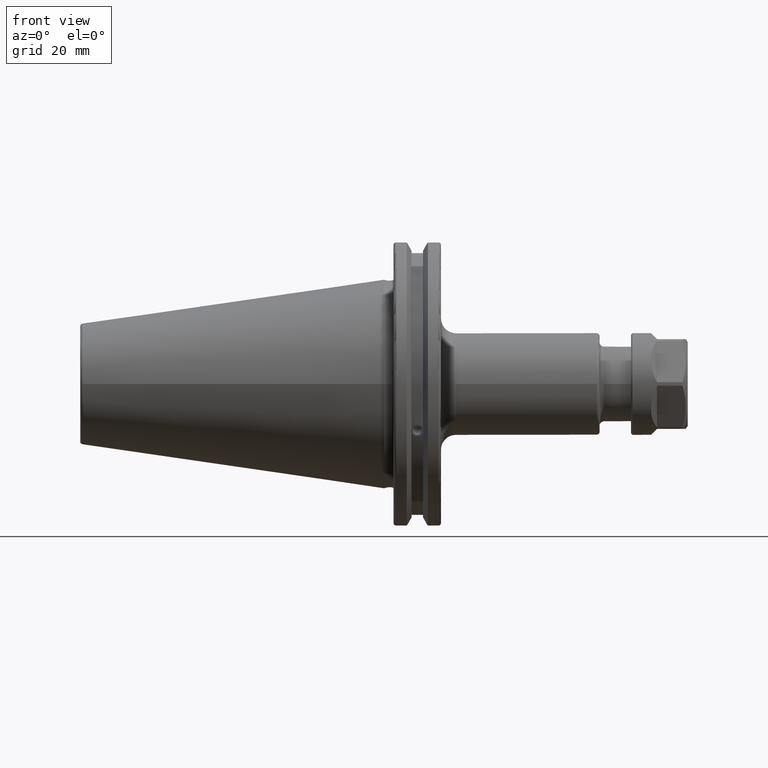
[diagram: clean part render]
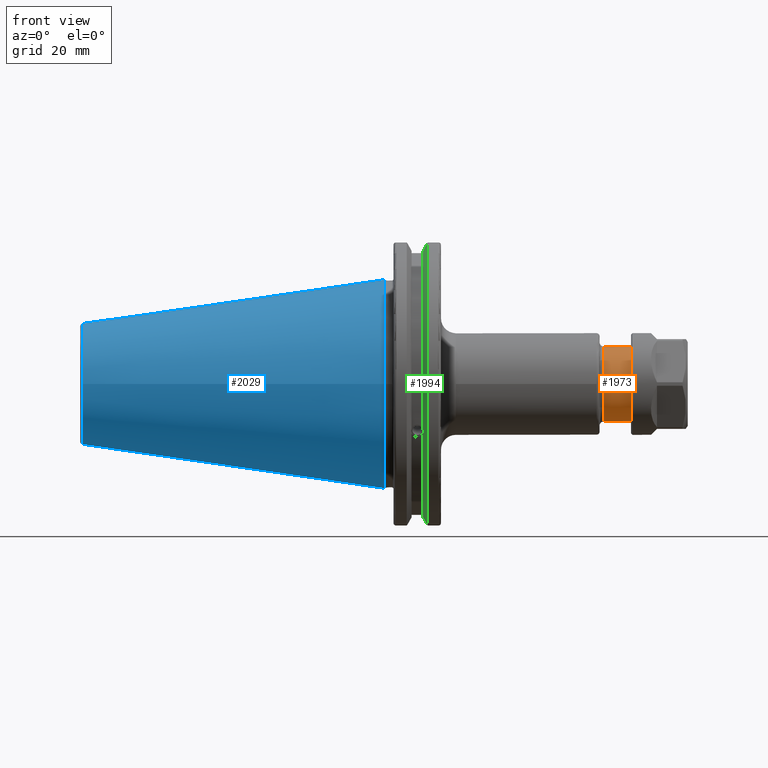
[diagram: same view with three faces highlighted in distinct colors, each labeled with its STEP entity id]
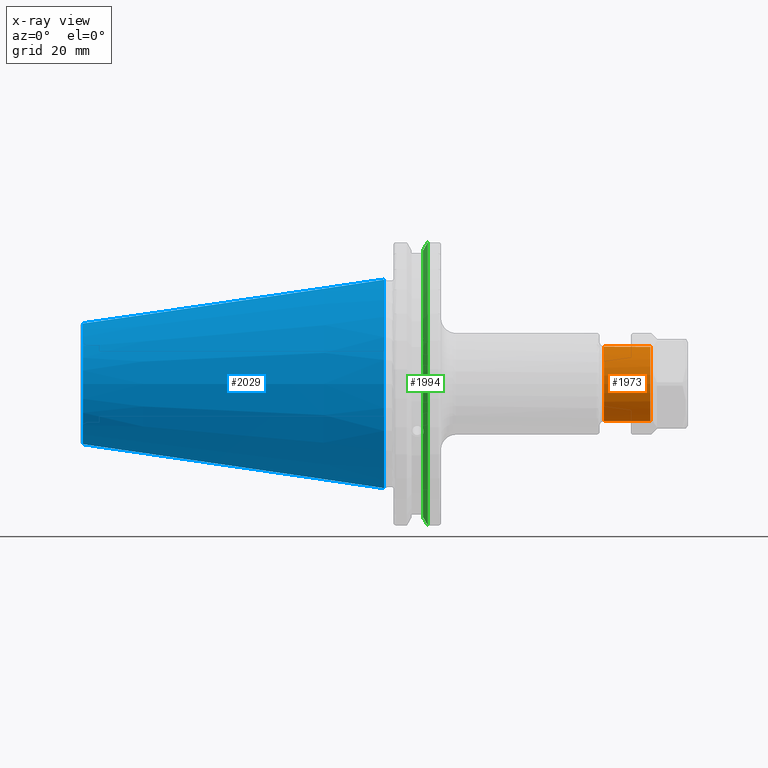
[diagram: x-ray of the same camera — body ghosted, the three highlighted faces saturated]
A machine part, front view with three faces highlighted in distinct colors.
The next image is the same camera in x-ray (body ghosted, the three faces saturated) — at least one of them is partly hidden behind the body in this view.
Their STEP definitions:

[orange] entity #1973 — the highlighted cylindrical surface (bore or boss wall) has radius 12.5 mm, axis along (1, 0, 0).
#142=CYLINDRICAL_SURFACE('',#2169,12.5);
#260=FACE_OUTER_BOUND('',#378,.T.);
#378=EDGE_LOOP('',(#1369,#1370,#1371,#1372,#1373,#1374));
#520=LINE('',#3010,#640);
#640=VECTOR('',#2418,12.5);
#760=CIRCLE('',#2165,12.5);
#761=CIRCLE('',#2166,12.5);
#763=CIRCLE('',#2170,12.5);
#764=CIRCLE('',#2171,12.5);
#867=VERTEX_POINT('',#3000);
#868=VERTEX_POINT('',#3002);
#870=VERTEX_POINT('',#3009);
#871=VERTEX_POINT('',#3011);
#1067=EDGE_CURVE('',#867,#868,#760,.T.);
#1068=EDGE_CURVE('',#868,#867,#761,.T.);
#1070=EDGE_CURVE('',#868,#870,#520,.T.);
#1071=EDGE_CURVE('',#871,#870,#763,.T.);
#1072=EDGE_CURVE('',#870,#871,#764,.T.);
#1369=ORIENTED_EDGE('',*,*,#1067,.F.);
#1370=ORIENTED_EDGE('',*,*,#1068,.F.);
#1371=ORIENTED_EDGE('',*,*,#1070,.T.);
#1372=ORIENTED_EDGE('',*,*,#1071,.F.);
#1373=ORIENTED_EDGE('',*,*,#1072,.F.);
#1374=ORIENTED_EDGE('',*,*,#1070,.F.);
#1973=ADVANCED_FACE('',(#260),#142,.T.);
#2165=AXIS2_PLACEMENT_3D('',#3003,#2408,#2409);
#2166=AXIS2_PLACEMENT_3D('',#3004,#2410,#2411);
#2169=AXIS2_PLACEMENT_3D('',#3008,#2416,#2417);
#2170=AXIS2_PLACEMENT_3D('',#3012,#2419,#2420);
#2171=AXIS2_PLACEMENT_3D('',#3013,#2421,#2422);
#2408=DIRECTION('center_axis',(1.,0.,0.));
#2409=DIRECTION('ref_axis',(0.,-1.,0.));
#2410=DIRECTION('center_axis',(1.,0.,0.));
#2411=DIRECTION('ref_axis',(0.,-1.,0.));
#2416=DIRECTION('center_axis',(1.,0.,0.));
#2417=DIRECTION('ref_axis',(0.,1.,0.));
#2418=DIRECTION('',(-1.,0.,0.));
#2419=DIRECTION('center_axis',(-1.,0.,0.));
#2420=DIRECTION('ref_axis',(0.,-1.,1.83697019872103E-16));
#2421=DIRECTION('center_axis',(-1.,0.,0.));
#2422=DIRECTION('ref_axis',(0.,-1.,1.83697019872103E-16));
#3000=CARTESIAN_POINT('',(89.1,12.5,1.53080849893419E-15));
#3002=CARTESIAN_POINT('',(89.1,-12.5,-1.53080849893419E-15));
#3003=CARTESIAN_POINT('Origin',(89.1,0.,0.));
#3004=CARTESIAN_POINT('Origin',(89.1,0.,0.));
#3008=CARTESIAN_POINT('Origin',(81.1,0.,0.));
#3009=CARTESIAN_POINT('',(73.6,-12.5,-1.53080849893419E-15));
#3010=CARTESIAN_POINT('',(81.1,-12.5,-1.53080849893419E-15));
#3011=CARTESIAN_POINT('',(73.6,-1.53080849893419E-15,12.5));
#3012=CARTESIAN_POINT('Origin',(73.6,0.,0.));
#3013=CARTESIAN_POINT('Origin',(73.6,0.,0.));

[blue] entity #2029 — the highlighted conical surface has half-angle 8.297 deg.
#316=FACE_OUTER_BOUND('',#451,.T.);
#451=EDGE_LOOP('',(#1687,#1688,#1689,#1690,#1691));
#594=LINE('',#3868,#714);
#714=VECTOR('',#2738,27.5166666666666);
#822=CIRCLE('',#2285,20.233121911427);
#823=CIRCLE('',#2286,20.233121911427);
#827=CIRCLE('',#2292,34.925);
#1007=VERTEX_POINT('',#3855);
#1008=VERTEX_POINT('',#3856);
#1011=VERTEX_POINT('',#3866);
#1257=EDGE_CURVE('',#1007,#1008,#822,.T.);
#1258=EDGE_CURVE('',#1008,#1007,#823,.T.);
#1262=EDGE_CURVE('',#1011,#1011,#827,.T.);
#1263=EDGE_CURVE('',#1011,#1008,#594,.T.);
#1687=ORIENTED_EDGE('',*,*,#1262,.F.);
#1688=ORIENTED_EDGE('',*,*,#1263,.T.);
#1689=ORIENTED_EDGE('',*,*,#1257,.F.);
#1690=ORIENTED_EDGE('',*,*,#1258,.F.);
#1691=ORIENTED_EDGE('',*,*,#1263,.F.);
#1962=CONICAL_SURFACE('',#2291,27.5166666666666,0.14481249823894);
#2029=ADVANCED_FACE('',(#316),#1962,.T.);
#2285=AXIS2_PLACEMENT_3D('',#3857,#2722,#2723);
#2286=AXIS2_PLACEMENT_3D('',#3858,#2724,#2725);
#2291=AXIS2_PLACEMENT_3D('',#3865,#2734,#2735);
#2292=AXIS2_PLACEMENT_3D('',#3867,#2736,#2737);
#2722=DIRECTION('center_axis',(-1.,0.,0.));
#2723=DIRECTION('ref_axis',(0.,-1.,3.06161699786838E-17));
#2724=DIRECTION('center_axis',(-1.,0.,0.));
#2725=DIRECTION('ref_axis',(0.,-1.,3.06161699786838E-17));
#2734=DIRECTION('center_axis',(1.,0.,0.));
#2735=DIRECTION('ref_axis',(0.,1.,0.));
#2736=DIRECTION('center_axis',(1.,0.,0.));
#2737=DIRECTION('ref_axis',(0.,0.,-1.));
#2738=DIRECTION('',(-0.989532981063281,0.144306893071729,1.76724974695192E-17));
#3855=CARTESIAN_POINT('',(-100.744306893072,-2.47784279855872E-15,20.233121911427));
#3856=CARTESIAN_POINT('',(-100.744306893072,-20.233121911427,-2.47784279855872E-15));
#3857=CARTESIAN_POINT('Origin',(-100.744306893072,0.,-3.09730349819841E-15));
#3858=CARTESIAN_POINT('Origin',(-100.744306893072,0.,-3.09730349819841E-15));
#3865=CARTESIAN_POINT('Origin',(-50.8,0.,0.));
#3866=CARTESIAN_POINT('',(-8.88178419700125E-15,-34.925,-4.27707894602213E-15));
#3867=CARTESIAN_POINT('Origin',(0.,0.,0.));
#3868=CARTESIAN_POINT('',(-50.8,-27.5166666666666,-3.3698197756538E-15));

[green] entity #1994 — the highlighted conical surface has half-angle 60 deg.
#61=(
BOUNDED_CURVE()
B_SPLINE_CURVE(2,(#3360,#3361,#3362),.UNSPECIFIED.,.F.,.F.)
B_SPLINE_CURVE_WITH_KNOTS((3,3),(0.,0.275823910673016),.UNSPECIFIED.)
CURVE()
GEOMETRIC_REPRESENTATION_ITEM()
RATIONAL_B_SPLINE_CURVE((1.,1.00038235574188,1.00012873636688))
REPRESENTATION_ITEM('')
);
#62=(
BOUNDED_CURVE()
B_SPLINE_CURVE(2,(#3364,#3365,#3366),.UNSPECIFIED.,.F.,.F.)
B_SPLINE_CURVE_WITH_KNOTS((3,3),(0.,0.064824047289736),.UNSPECIFIED.)
CURVE()
GEOMETRIC_REPRESENTATION_ITEM()
RATIONAL_B_SPLINE_CURVE((1.,1.00011477674827,1.00019140645933))
REPRESENTATION_ITEM('')
);
#63=(
BOUNDED_CURVE()
B_SPLINE_CURVE(2,(#3370,#3371,#3372),.UNSPECIFIED.,.F.,.F.)
B_SPLINE_CURVE_WITH_KNOTS((3,3),(0.325260944932422,0.390084992222201),
 .UNSPECIFIED.)
CURVE()
GEOMETRIC_REPRESENTATION_ITEM()
RATIONAL_B_SPLINE_CURVE((1.00019140645968,1.00011477674848,1.))
REPRESENTATION_ITEM('')
);
#64=(
BOUNDED_CURVE()
B_SPLINE_CURVE(2,(#3374,#3375,#3376),.UNSPECIFIED.,.F.,.F.)
B_SPLINE_CURVE_WITH_KNOTS((3,3),(0.0558332664513841,0.331657177124504),
 .UNSPECIFIED.)
CURVE()
GEOMETRIC_REPRESENTATION_ITEM()
RATIONAL_B_SPLINE_CURVE((1.0001287363678,1.00038235574463,1.))
REPRESENTATION_ITEM('')
);
#112=B_SPLINE_CURVE_WITH_KNOTS('',3,(#3269,#3270,#3271,#3272,#3273,#3274,
#3275,#3276),.UNSPECIFIED.,.F.,.F.,(4,2,2,4),(0.42671286835872,0.441644498666905,
0.480313313223129,0.518982127779353),.UNSPECIFIED.);
#116=B_SPLINE_CURVE_WITH_KNOTS('',3,(#3331,#3332,#3333,#3334,#3335,#3336,
#3337,#3338),.UNSPECIFIED.,.F.,.F.,(4,2,2,4),(0.518982127779353,0.557650942335576,
0.5963197568918,0.611251387199986),.UNSPECIFIED.);
#281=FACE_OUTER_BOUND('',#408,.T.);
#408=EDGE_LOOP('',(#1482,#1483,#1484,#1485,#1486,#1487,#1488,#1489,#1490));
#791=CIRCLE('',#2220,46.4219772964944);
#792=CIRCLE('',#2221,49.2125);
#793=CIRCLE('',#2222,46.4219772964944);
#909=VERTEX_POINT('',#3266);
#910=VERTEX_POINT('',#3268);
#917=VERTEX_POINT('',#3329);
#923=VERTEX_POINT('',#3357);
#924=VERTEX_POINT('',#3359);
#925=VERTEX_POINT('',#3363);
#926=VERTEX_POINT('',#3367);
#927=VERTEX_POINT('',#3369);
#928=VERTEX_POINT('',#3373);
#1122=EDGE_CURVE('',#910,#909,#112,.T.);
#1130=EDGE_CURVE('',#909,#917,#116,.T.);
#1138=EDGE_CURVE('',#917,#923,#791,.T.);
#1139=EDGE_CURVE('',#923,#924,#61,.T.);
#1140=EDGE_CURVE('',#925,#924,#62,.T.);
#1141=EDGE_CURVE('',#926,#925,#792,.T.);
#1142=EDGE_CURVE('',#927,#926,#63,.T.);
#1143=EDGE_CURVE('',#927,#928,#64,.T.);
#1144=EDGE_CURVE('',#928,#910,#793,.T.);
#1482=ORIENTED_EDGE('',*,*,#1122,.T.);
#1483=ORIENTED_EDGE('',*,*,#1130,.T.);
#1484=ORIENTED_EDGE('',*,*,#1138,.T.);
#1485=ORIENTED_EDGE('',*,*,#1139,.T.);
#1486=ORIENTED_EDGE('',*,*,#1140,.F.);
#1487=ORIENTED_EDGE('',*,*,#1141,.F.);
#1488=ORIENTED_EDGE('',*,*,#1142,.F.);
#1489=ORIENTED_EDGE('',*,*,#1143,.T.);
#1490=ORIENTED_EDGE('',*,*,#1144,.T.);
#1958=CONICAL_SURFACE('',#2219,47.8172386482472,1.0471975511966);
#1994=ADVANCED_FACE('',(#281),#1958,.T.);
#2219=AXIS2_PLACEMENT_3D('',#3356,#2542,#2543);
#2220=AXIS2_PLACEMENT_3D('',#3358,#2544,#2545);
#2221=AXIS2_PLACEMENT_3D('',#3368,#2546,#2547);
#2222=AXIS2_PLACEMENT_3D('',#3377,#2548,#2549);
#2542=DIRECTION('center_axis',(1.,0.,0.));
#2543=DIRECTION('ref_axis',(0.,-1.,-1.22464679914735E-16));
#2544=DIRECTION('center_axis',(1.,0.,0.));
#2545=DIRECTION('ref_axis',(0.,0.,-1.));
#2546=DIRECTION('center_axis',(1.,0.,0.));
#2547=DIRECTION('ref_axis',(0.,0.,-1.));
#2548=DIRECTION('center_axis',(1.,0.,0.));
#2549=DIRECTION('ref_axis',(0.,0.,-1.));
#3266=CARTESIAN_POINT('',(13.2341,-43.923494649906,-15.9868446375166));
#3268=CARTESIAN_POINT('',(13.0491,-43.9096390749305,-15.0646464421033));
#3269=CARTESIAN_POINT('Ctrl Pts',(13.0491,-43.9096390749305,-15.0646464421033));
#3270=CARTESIAN_POINT('Ctrl Pts',(13.0660815609661,-43.9250360001461,-15.1104047527575));
#3271=CARTESIAN_POINT('Ctrl Pts',(13.0821132459668,-43.9385582852181,-15.1564111356409));
#3272=CARTESIAN_POINT('Ctrl Pts',(13.1358132615496,-43.9797830409459,-15.3217566390708));
#3273=CARTESIAN_POINT('Ctrl Pts',(13.1719838933644,-43.9989016655819,-15.4570249042868));
#3274=CARTESIAN_POINT('Ctrl Pts',(13.2212913174802,-43.9931221605126,-15.7289849146254));
#3275=CARTESIAN_POINT('Ctrl Pts',(13.2341,-43.9675796948952,-15.8657219718732));
#3276=CARTESIAN_POINT('Ctrl Pts',(13.2341,-43.923494649906,-15.9868446375166));
#3329=CARTESIAN_POINT('',(13.0491,-43.3201030900029,-16.6843832486479));
#3331=CARTESIAN_POINT('Ctrl Pts',(13.2341,-43.923494649906,-15.9868446375166));
#3332=CARTESIAN_POINT('Ctrl Pts',(13.2341,-43.8794096049169,-16.10796730316));
#3333=CARTESIAN_POINT('Ctrl Pts',(13.2212913174802,-43.8110833825828,-16.2291323464527));
#3334=CARTESIAN_POINT('Ctrl Pts',(13.1719838933644,-43.6406982153492,-16.441180795372));
#3335=CARTESIAN_POINT('Ctrl Pts',(13.1358132615496,-43.5391037343221,-16.5325130832406));
#3336=CARTESIAN_POINT('Ctrl Pts',(13.0821132459668,-43.4012416983557,-16.6326763251437));
#3337=CARTESIAN_POINT('Ctrl Pts',(13.0660815609661,-43.3613106941341,-16.6592273018006));
#3338=CARTESIAN_POINT('Ctrl Pts',(13.0491,-43.3201030900029,-16.6843832486479));
#3356=CARTESIAN_POINT('Origin',(13.8546545170244,0.,0.));
#3357=CARTESIAN_POINT('',(13.0491,-12.95,-44.5791147973604));
#3358=CARTESIAN_POINT('Origin',(13.0491,0.,0.));
#3359=CARTESIAN_POINT('',(14.3818103943757,-12.95,-46.9780755322917));
#3360=CARTESIAN_POINT('Ctrl Pts',(13.0491,-12.95,-44.5791147973604));
#3361=CARTESIAN_POINT('Ctrl Pts',(13.697995509465,-12.95,-45.7494966802572));
#3362=CARTESIAN_POINT('Ctrl Pts',(14.3818103943757,-12.95,-46.9780755322917));
#3363=CARTESIAN_POINT('',(14.6602090340487,-13.4317035994433,-47.3440544806494));
#3364=CARTESIAN_POINT('Ctrl Pts',(14.6602090340487,-13.4317035994433,-47.3440544806494));
#3365=CARTESIAN_POINT('Ctrl Pts',(14.5199310333618,-13.1896660169966,-47.1601640966265));
#3366=CARTESIAN_POINT('Ctrl Pts',(14.3818103943757,-12.95,-46.9780755322917));
#3367=CARTESIAN_POINT('',(14.6602090340487,-13.4317035994433,47.3440544806494));
#3368=CARTESIAN_POINT('Origin',(14.6602090340487,0.,0.));
#3369=CARTESIAN_POINT('',(14.3818103943757,-12.95,46.9780755322918));
#3370=CARTESIAN_POINT('Ctrl Pts',(14.3818103943757,-12.95,46.9780755322918));
#3371=CARTESIAN_POINT('Ctrl Pts',(14.5199310333618,-13.1896660169966,47.1601640966264));
#3372=CARTESIAN_POINT('Ctrl Pts',(14.6602090340487,-13.4317035994433,47.3440544806494));
#3373=CARTESIAN_POINT('',(13.0491,-12.95,44.5791147973604));
#3374=CARTESIAN_POINT('Ctrl Pts',(14.3818103943757,-12.95,46.9780755322917));
#3375=CARTESIAN_POINT('Ctrl Pts',(13.6979955094656,-12.95,45.7494966802583));
#3376=CARTESIAN_POINT('Ctrl Pts',(13.0491,-12.95,44.5791147973604));
#3377=CARTESIAN_POINT('Origin',(13.0491,0.,0.));